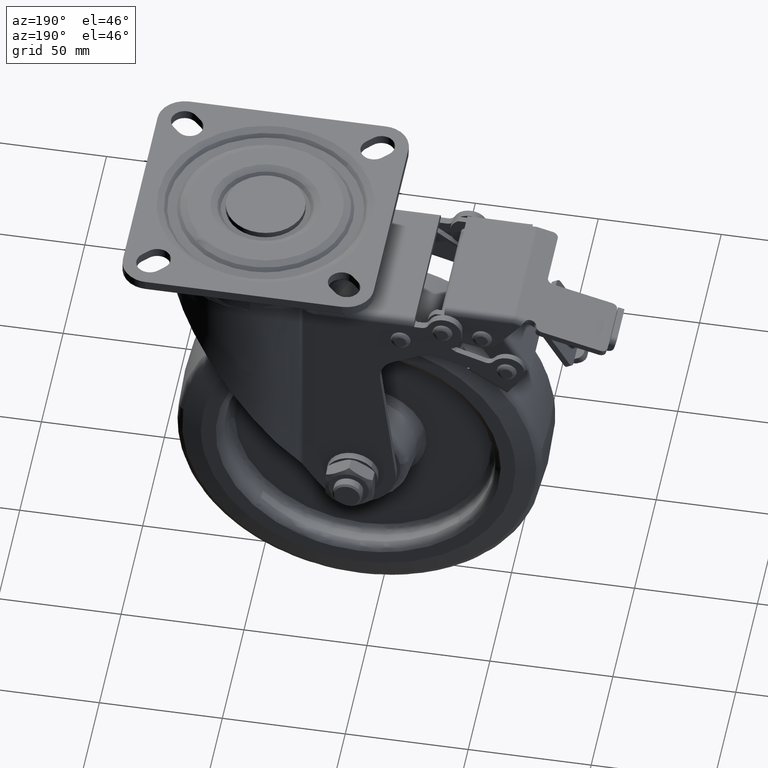
[diagram: clean part render]
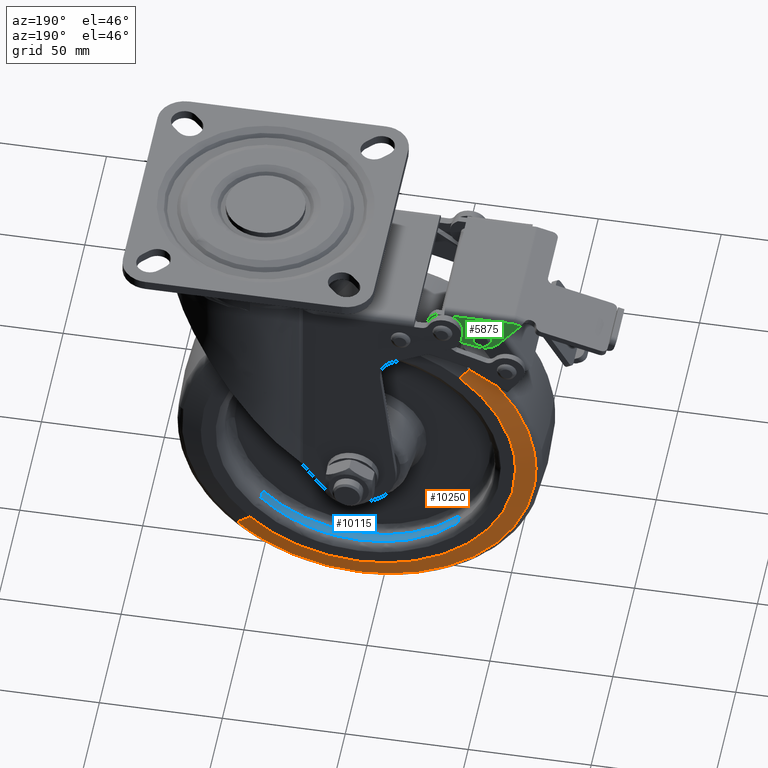
[diagram: same view with three faces highlighted in distinct colors, each labeled with its STEP entity id]
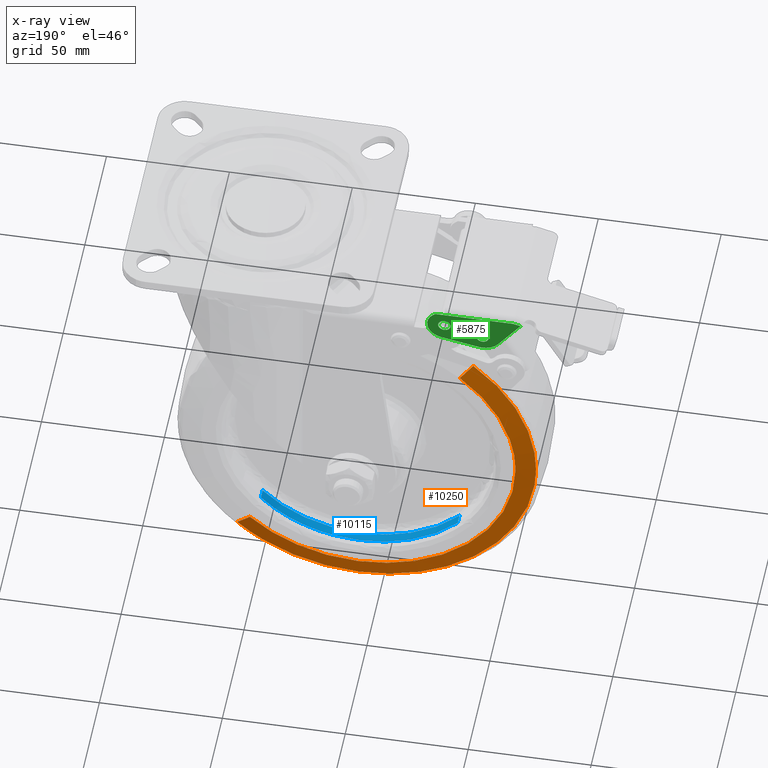
[diagram: x-ray of the same camera — body ghosted, the three highlighted faces saturated]
A machine part, auxiliary view with three faces highlighted in distinct colors.
The next image is the same camera in x-ray (body ghosted, the three faces saturated) — at least one of them is partly hidden behind the body in this view.
Their STEP definitions:

[orange] entity #10250 — the highlighted face is a freeform B-spline surface patch.
#10116=CARTESIAN_POINT('',(-82.198577956156896,19.046081945176685,-66.284878032454273));
#10117=CARTESIAN_POINT('',(-83.592784017773084,19.046081945176685,-67.463963633453233));
#10118=CARTESIAN_POINT('',(-84.917273404180804,19.046081945176692,-68.720857130144083));
#10119=CARTESIAN_POINT('',(-131.196423274036700,19.046081945176692,-112.638130534324890));
#10120=CARTESIAN_POINT('',(-87.279149869855900,19.046081945176692,-158.917280404180790));
#10121=CARTESIAN_POINT('',(-43.361876465675110,19.046081945176692,-205.196430274036800));
#10122=CARTESIAN_POINT('',(2.917273404180797,19.046081945176692,-161.279156869855910));
#10123=CARTESIAN_POINT('',(-87.615293971609645,17.109488199042428,-59.879899211239497));
#10124=CARTESIAN_POINT('',(-89.192807775323985,17.109488199042435,-61.214008897422119));
#10125=CARTESIAN_POINT('',(-90.691438678928876,17.109488199042431,-62.636156523527092));
#10126=CARTESIAN_POINT('',(-143.055289155401820,17.109488199042424,-112.327595202455970));
#10127=CARTESIAN_POINT('',(-93.363850476472919,17.109488199042431,-164.691445678928890));
#10128=CARTESIAN_POINT('',(-43.672411797544036,17.109488199042424,-217.055296155401810));
#10129=CARTESIAN_POINT('',(8.691438678928876,17.109488199042431,-167.363857476472900));
#10137=(BOUNDED_SURFACE()B_SPLINE_SURFACE(2,1,((#10116,#10123),(#10117,#10124),(#10118,#10125),(#10119,#10126),(#10120,#10127),(#10121,#10128),(#10122,#10129)),.UNSPECIFIED.,.F.,.F.,.U.)B_SPLINE_SURFACE_WITH_KNOTS((3,2,2,3),(2,2),(0.0,4.784247784252538,124.390442390565790,243.996636996879090),(0.0,8.609004671263591),.UNSPECIFIED.)GEOMETRIC_REPRESENTATION_ITEM()RATIONAL_B_SPLINE_SURFACE(((0.977505800795127,0.977505800795127),(0.988284271247462,0.988284271247462),(1.0,1.0),(0.707106781186548,0.707106781186548),(1.0,1.0),(0.707106781186548,0.707106781186548),(1.0,1.0)))REPRESENTATION_ITEM('')SURFACE());
#10138=CARTESIAN_POINT('',(-82.327469653636314,19.000000175792039,-66.132470450032088));
#10139=VERTEX_POINT('',#10138);
#10140=CARTESIAN_POINT('',(-104.999969348127190,18.999999999998000,-115.000010253305010));
#10141=VERTEX_POINT('',#10140);
#10142=CARTESIAN_POINT('',(-82.327469653636314,19.000000175792039,-66.132470450032088));
#10143=CARTESIAN_POINT('',(-84.759982406257379,19.000000168392461,-68.189417707699974));
#10144=CARTESIAN_POINT('',(-88.488169639989025,19.000000155211460,-71.853500605451487));
#10145=CARTESIAN_POINT('',(-94.173825462451688,19.000000129500769,-79.000600631631059));
#10146=CARTESIAN_POINT('',(-98.383963395646660,19.000000103818071,-86.139898805526215));
#10147=CARTESIAN_POINT('',(-101.338177494695300,19.000000077729510,-93.392071720516341));
#10148=CARTESIAN_POINT('',(-103.151297490172990,19.000000056285302,-99.353167055846868));
#10149=CARTESIAN_POINT('',(-104.588269822607400,19.000000031251790,-106.312038385925010));
#10150=CARTESIAN_POINT('',(-105.000144060942400,19.000000011457679,-111.814396779991600));
#10151=CARTESIAN_POINT('',(-104.999969348127190,18.999999999998000,-115.000010253305010));
#10152=B_SPLINE_CURVE_WITH_KNOTS('',3,(#10142,#10143,#10144,#10145,#10146,#10147,#10148,#10149,#10150,#10151),.UNSPECIFIED.,.F.,.U.,(4,1,1,1,1,1,1,4),(0.000000017159280,9.556830139315309,15.638458223512981,27.367306808380832,34.317690900685108,39.096122076201738,46.046556414029240,55.603386536167747),.UNSPECIFIED.);
#10153=EDGE_CURVE('',#10139,#10141,#10152,.T.);
#10154=ORIENTED_EDGE('',*,*,#10153,.T.);
#10155=CARTESIAN_POINT('',(-41.0,18.999999999998000,-178.999976348127290));
#10156=VERTEX_POINT('',#10155);
#10157=CARTESIAN_POINT('',(-104.999969348127190,18.999999999998000,-115.000010253305010));
#10158=CARTESIAN_POINT('',(-105.000110441006400,18.999999999998010,-118.141590493614500));
#10159=CARTESIAN_POINT('',(-104.536469112791590,18.999999999998021,-124.424738445196890));
#10160=CARTESIAN_POINT('',(-102.638430923255800,18.999999999998028,-132.877052367751990));
#10161=CARTESIAN_POINT('',(-99.718430787490135,18.999999999998039,-140.882660383225100));
#10162=CARTESIAN_POINT('',(-96.113799818570271,18.999999999997890,-147.882626594517490));
#10163=CARTESIAN_POINT('',(-90.898106976493409,18.999999999998089,-155.435299580755500));
#10164=CARTESIAN_POINT('',(-84.907094038593911,18.999999999997971,-161.884612748954200));
#10165=CARTESIAN_POINT('',(-77.944319833054706,18.999999999998021,-167.456853788159800));
#10166=CARTESIAN_POINT('',(-70.463722965234965,18.999999999997971,-172.066551788801090));
#10167=CARTESIAN_POINT('',(-62.265267325652573,18.999999999998181,-175.610712343342610));
#10168=CARTESIAN_POINT('',(-52.126271245155692,18.999999999997470,-178.316324792821800));
#10169=CARTESIAN_POINT('',(-45.188825503376023,18.999999999999069,-179.000495865768410));
#10170=CARTESIAN_POINT('',(-41.0,18.999999999998000,-178.999976348127290));
#10171=B_SPLINE_CURVE_WITH_KNOTS('',3,(#10157,#10158,#10159,#10160,#10161,#10162,#10163,#10164,#10165,#10166,#10167,#10168,#10169,#10170),.UNSPECIFIED.,.F.,.U.,(4,1,1,1,1,1,1,1,1,1,1,4),(0.000000067882596,9.424739411712196,18.849558350017819,25.918168783862029,34.950287899685208,42.411596893676013,53.407070292949207,61.261088148643559,69.115091210688760,79.718012854144291,87.964699705041667,100.531072637231900),.UNSPECIFIED.);
#10172=EDGE_CURVE('',#10141,#10156,#10171,.T.);
#10173=ORIENTED_EDGE('',*,*,#10172,.T.);
#10174=CARTESIAN_POINT('',(3.054670655155538,19.000000178022109,-161.423943362201300));
#10175=VERTEX_POINT('',#10174);
#10176=CARTESIAN_POINT('',(-41.0,18.999999999998000,-178.999976348127290));
#10177=CARTESIAN_POINT('',(-37.836598053718717,19.000000012781250,-179.000085594740400));
#10178=CARTESIAN_POINT('',(-30.877068747085929,19.000000040904592,-178.483169462371310));
#10179=CARTESIAN_POINT('',(-21.863139920849122,19.000000077329631,-176.303578986840900));
#10180=CARTESIAN_POINT('',(-13.859927769925440,19.000000109670541,-173.110226437794810));
#10181=CARTESIAN_POINT('',(-5.705260322982841,19.000000142623620,-168.736741156896810));
#10182=CARTESIAN_POINT('',(-0.157412426154965,19.000000165041889,-164.473063911551290));
#10183=CARTESIAN_POINT('',(3.054670655155538,19.000000178022109,-161.423943362201300));
#10184=B_SPLINE_CURVE_WITH_KNOTS('',3,(#10176,#10177,#10178,#10179,#10180,#10181,#10182,#10183),.UNSPECIFIED.,.F.,.U.,(4,1,1,1,1,4),(0.000000020681568,9.490233998483042,20.878540999175261,27.711473157215298,35.303680382963627,48.590013729713448),.UNSPECIFIED.);
#10185=EDGE_CURVE('',#10156,#10175,#10184,.T.);
#10186=ORIENTED_EDGE('',*,*,#10185,.T.);
#10187=CARTESIAN_POINT('',(8.550605374850802,17.156722194424979,-167.215450139657290));
#10188=VERTEX_POINT('',#10187);
#10189=CARTESIAN_POINT('',(3.054670655155538,19.000000178022109,-161.423943362201300));
#10190=CARTESIAN_POINT('',(8.550605374850802,17.156722194424979,-167.215450139657290));
#10191=QUASI_UNIFORM_CURVE('',1,(#10189,#10190),.UNSPECIFIED.,.F.,.U.);
#10192=EDGE_CURVE('',#10175,#10188,#10191,.T.);
#10193=ORIENTED_EDGE('',*,*,#10192,.T.);
#10194=CARTESIAN_POINT('',(-41.0,17.156722194355549,-186.984137163031590));
#10195=VERTEX_POINT('',#10194);
#10196=CARTESIAN_POINT('',(-41.0,17.156722194355549,-186.984137163031590));
#10197=CARTESIAN_POINT('',(-37.584268056939173,17.156722194400579,-186.984296960509910));
#10198=CARTESIAN_POINT('',(-30.610507773121569,17.156722194478000,-186.486880931567810));
#10199=CARTESIAN_POINT('',(-21.550679666120470,17.156722194538560,-184.494323539607900));
#10200=CARTESIAN_POINT('',(-13.754577274830661,17.156722194560381,-181.753076595628390));
#10201=CARTESIAN_POINT('',(-6.649946868043044,17.156722194556419,-178.443513961923090));
#10202=CARTESIAN_POINT('',(1.002706993300582,17.156722194517979,-173.734557380599110));
#10203=CARTESIAN_POINT('',(6.073019338924867,17.156722194461860,-169.566790954041490));
#10204=CARTESIAN_POINT('',(8.550605374850802,17.156722194424979,-167.215450139657290));
#10205=B_SPLINE_CURVE_WITH_KNOTS('',3,(#10196,#10197,#10198,#10199,#10200,#10201,#10202,#10203,#10204),.UNSPECIFIED.,.F.,.U.,(4,1,1,1,1,1,4),(0.000000017160566,10.247194028847121,20.921390000168280,27.752817529719181,35.011260846933091,44.404549879933093,54.651743614947847),.UNSPECIFIED.);
#10206=EDGE_CURVE('',#10195,#10188,#10205,.T.);
#10207=ORIENTED_EDGE('',*,*,#10206,.F.);
#10208=CARTESIAN_POINT('',(-112.416513802532610,17.156722192850580,-124.022010799569200));
#10209=VERTEX_POINT('',#10208);
#10210=CARTESIAN_POINT('',(-112.416513802532610,17.156722192850580,-124.022010799569200));
#10211=CARTESIAN_POINT('',(-111.823002213773410,17.156722192963070,-128.725580415928500));
#10212=CARTESIAN_POINT('',(-110.337529987395400,17.156722193118281,-135.227488840894610));
#10213=CARTESIAN_POINT('',(-106.681712994380400,17.156722193348891,-144.859435591913410));
#10214=CARTESIAN_POINT('',(-102.866419441990200,17.156722193524320,-152.215394038813910));
#10215=CARTESIAN_POINT('',(-97.961905533892320,17.156722193691682,-159.215265555678000));
#10216=CARTESIAN_POINT('',(-92.996753940533239,17.156722193829282,-164.959893038330590));
#10217=CARTESIAN_POINT('',(-87.273998087038862,17.156722193957911,-170.360465285060710));
#10218=CARTESIAN_POINT('',(-79.533319792459821,17.156722194095568,-176.098689793398790));
#10219=CARTESIAN_POINT('',(-70.798063257745525,17.156722194207720,-180.802224148289610));
#10220=CARTESIAN_POINT('',(-60.854145714140863,17.156722194294549,-184.431965680055100));
#10221=CARTESIAN_POINT('',(-51.158817497615637,17.156722194344340,-186.515476636821010));
#10222=CARTESIAN_POINT('',(-44.250817730768837,17.156722194355570,-186.984256171469210));
#10223=CARTESIAN_POINT('',(-41.0,17.156722194355549,-186.984137163031590));
#10224=B_SPLINE_CURVE_WITH_KNOTS('',3,(#10210,#10211,#10212,#10213,#10214,#10215,#10216,#10217,#10218,#10219,#10220,#10221,#10222,#10223),.UNSPECIFIED.,.F.,.U.,(4,1,1,1,1,1,1,1,1,1,1,4),(0.000000063224888,14.222402259705730,19.911367382167001,30.882954921920462,39.010054741607313,45.511736651747249,53.638735158212747,62.578570482356419,74.362863844952386,83.302681565804704,94.274295070805678,104.026752792859000),.UNSPECIFIED.);
#10225=EDGE_CURVE('',#10209,#10195,#10224,.T.);
#10226=ORIENTED_EDGE('',*,*,#10225,.F.);
#10227=CARTESIAN_POINT('',(-87.483178942313359,17.156722194469769,-60.036118212233838));
#10228=VERTEX_POINT('',#10227);
#10229=CARTESIAN_POINT('',(-87.483178942313359,17.156722194469769,-60.036118212233838));
#10230=CARTESIAN_POINT('',(-91.042226768114489,17.156722194426209,-63.045147497982988));
#10231=CARTESIAN_POINT('',(-95.743532281226535,17.156722194342588,-67.878659169600510));
#10232=CARTESIAN_POINT('',(-101.088426943409500,17.156722194191790,-75.181354596964894));
#10233=CARTESIAN_POINT('',(-105.026459582794100,17.156722194044590,-81.742547190047318));
#10234=CARTESIAN_POINT('',(-108.870364812794190,17.156722193836849,-90.257768571202689));
#10235=CARTESIAN_POINT('',(-111.259266076761090,17.156722193612399,-98.617905598931344));
#10236=CARTESIAN_POINT('',(-112.581984368706800,17.156722193389090,-106.529136832003200));
#10237=CARTESIAN_POINT('',(-113.180038598298590,17.156722193157108,-114.347569553427800));
#10238=CARTESIAN_POINT('',(-112.860653589585200,17.156722192964320,-120.507957380815400));
#10239=CARTESIAN_POINT('',(-112.416513802532610,17.156722192850580,-124.022010799569200));
#10240=B_SPLINE_CURVE_WITH_KNOTS('',3,(#10229,#10230,#10231,#10232,#10233,#10234,#10235,#10236,#10237,#10238,#10239),.UNSPECIFIED.,.F.,.U.,(4,1,1,1,1,1,1,1,4),(0.000000034196972,13.981584184338960,20.133504383036161,27.124322596103809,36.911374106980659,48.096669801055683,53.130059669587880,60.959765224135467,71.585766693182620),.UNSPECIFIED.);
#10241=EDGE_CURVE('',#10228,#10209,#10240,.T.);
#10242=ORIENTED_EDGE('',*,*,#10241,.F.);
#10243=CARTESIAN_POINT('',(-82.327469653636314,19.000000175792039,-66.132470450032088));
#10244=CARTESIAN_POINT('',(-87.483178942313359,17.156722194469769,-60.036118212233838));
#10245=QUASI_UNIFORM_CURVE('',1,(#10243,#10244),.UNSPECIFIED.,.F.,.U.);
#10246=EDGE_CURVE('',#10139,#10228,#10245,.T.);
#10247=ORIENTED_EDGE('',*,*,#10246,.F.);
#10248=EDGE_LOOP('',(#10154,#10173,#10186,#10193,#10207,#10226,#10242,#10247));
#10249=FACE_OUTER_BOUND('',#10248,.T.);
#10250=ADVANCED_FACE('',(#10249),#10137,.T.);

[blue] entity #10115 — the highlighted face is a freeform B-spline surface patch.
#9884=CARTESIAN_POINT('',(-0.920758063941225,11.999999249066660,-152.665013515733110));
#9885=VERTEX_POINT('',#9884);
#9937=CARTESIAN_POINT('',(-80.895579474130386,11.999999250032729,-152.859498391506610));
#9938=VERTEX_POINT('',#9937);
#9951=CARTESIAN_POINT('',(-80.895579991931811,15.999999624999001,-152.859498689250190));
#9952=VERTEX_POINT('',#9951);
#9953=CARTESIAN_POINT('',(-80.895579991931811,15.999999624999001,-152.859498689250190));
#9954=CARTESIAN_POINT('',(-80.895579474130386,11.999999250032729,-152.859498391506610));
#9955=QUASI_UNIFORM_CURVE('',1,(#9953,#9954),.UNSPECIFIED.,.F.,.U.);
#9956=EDGE_CURVE('',#9952,#9938,#9955,.T.);
#10008=CARTESIAN_POINT('',(-0.920758004310724,15.999999624660539,-152.665013452291190));
#10009=VERTEX_POINT('',#10008);
#10025=CARTESIAN_POINT('',(-0.920758004310724,15.999999624660539,-152.665013452291190));
#10026=CARTESIAN_POINT('',(-0.920758063941225,11.999999249066660,-152.665013515733110));
#10027=QUASI_UNIFORM_CURVE('',1,(#10025,#10026),.UNSPECIFIED.,.F.,.U.);
#10028=EDGE_CURVE('',#10009,#9885,#10027,.T.);
#10033=CARTESIAN_POINT('',(-80.895579525060171,16.099999634447020,-152.859498337837810));
#10034=CARTESIAN_POINT('',(-43.036088187222418,16.099999634447027,-192.755077862897930));
#10035=CARTESIAN_POINT('',(-3.140508662162247,16.099999634447020,-154.895586525060200));
#10036=CARTESIAN_POINT('',(-1.998714316455273,16.099999634447023,-153.812064148508820));
#10037=CARTESIAN_POINT('',(-0.920758013492301,16.099999634447027,-152.665013462061980));
#10038=CARTESIAN_POINT('',(-80.895579525060171,11.897499237393850,-152.859498337837810));
#10039=CARTESIAN_POINT('',(-43.036088187222418,11.897499237393847,-192.755077862897930));
#10040=CARTESIAN_POINT('',(-3.140508662162247,11.897499237393850,-154.895586525060200));
#10041=CARTESIAN_POINT('',(-1.998714316455273,11.897499237393845,-153.812064148508820));
#10042=CARTESIAN_POINT('',(-0.920758013492301,11.897499237393843,-152.665013462061980));
#10050=(BOUNDED_SURFACE()B_SPLINE_SURFACE(2,1,((#10033,#10038),(#10034,#10039),(#10035,#10040),(#10036,#10041),(#10037,#10042)),.UNSPECIFIED.,.F.,.F.,.U.)B_SPLINE_SURFACE_WITH_KNOTS((3,2,3),(2,2),(0.0,91.126958869266971,94.772037224037661),(0.0,4.202500397053178),.UNSPECIFIED.)GEOMETRIC_REPRESENTATION_ITEM()RATIONAL_B_SPLINE_SURFACE(((1.0,1.0),(0.707106781186548,0.707106781186548),(1.0,1.0),(0.988284271247462,0.988284271247462),(0.977505800795127,0.977505800795127)))REPRESENTATION_ITEM('')SURFACE());
#10051=CARTESIAN_POINT('',(-41.0,11.999999249999000,-169.999991999999910));
#10052=VERTEX_POINT('',#10051);
#10053=CARTESIAN_POINT('',(-41.0,11.999999249999000,-169.999991999999910));
#10054=CARTESIAN_POINT('',(-37.725696754896880,11.999999249999080,-170.000359742841910));
#10055=CARTESIAN_POINT('',(-32.580561673972959,11.999999249974170,-169.539040242688490));
#10056=CARTESIAN_POINT('',(-25.169426501067029,11.999999249881050,-167.806740721462890));
#10057=CARTESIAN_POINT('',(-18.447784177935588,11.999999249750079,-165.371325187202810));
#10058=CARTESIAN_POINT('',(-11.829024802889370,11.999999249559520,-161.831271712097300));
#10059=CARTESIAN_POINT('',(-5.857854468960040,11.999999249326580,-157.493139558825500));
#10060=CARTESIAN_POINT('',(-2.522333166940917,11.999999249158170,-154.369357849858200));
#10061=CARTESIAN_POINT('',(-0.920758063941225,11.999999249066660,-152.665013515733110));
#10062=B_SPLINE_CURVE_WITH_KNOTS('',3,(#10053,#10054,#10055,#10056,#10057,#10058,#10059,#10060,#10061),.UNSPECIFIED.,.F.,.U.,(4,1,1,1,1,1,4),(0.000000025434886,9.822825629895824,15.435876108676460,22.802967603438741,31.222560294339779,37.888055936032821,44.904359787489639),.UNSPECIFIED.);
#10063=EDGE_CURVE('',#10052,#9885,#10062,.T.);
#10064=ORIENTED_EDGE('',*,*,#10063,.T.);
#10065=ORIENTED_EDGE('',*,*,#10028,.F.);
#10066=CARTESIAN_POINT('',(-19.474454194543849,15.999999623986421,-165.612744801638710));
#10067=VERTEX_POINT('',#10066);
#10068=CARTESIAN_POINT('',(-19.474454194543849,15.999999623986421,-165.612744801638710));
#10069=CARTESIAN_POINT('',(-17.180842590088929,15.999999624080880,-164.637383215493290));
#10070=CARTESIAN_POINT('',(-12.832656720324090,15.999999624253560,-162.427959465425000));
#10071=CARTESIAN_POINT('',(-6.562496555930705,15.999999624482330,-158.112412013402690));
#10072=CARTESIAN_POINT('',(-2.790035161720931,15.999999624604850,-154.654336818332690));
#10073=CARTESIAN_POINT('',(-0.920758004310724,15.999999624660539,-152.665013452291190));
#10074=B_SPLINE_CURVE_WITH_KNOTS('',3,(#10068,#10069,#10070,#10071,#10072,#10073),.UNSPECIFIED.,.F.,.U.,(4,1,1,4),(6.634718E-009,7.477155815150676,14.598244878061269,22.787517295901370),.UNSPECIFIED.);
#10075=EDGE_CURVE('',#10067,#10009,#10074,.T.);
#10076=ORIENTED_EDGE('',*,*,#10075,.F.);
#10077=CARTESIAN_POINT('',(-41.0,15.999999624999001,-169.999991999999910));
#10078=VERTEX_POINT('',#10077);
#10079=CARTESIAN_POINT('',(-41.0,15.999999624999001,-169.999991999999910));
#10080=CARTESIAN_POINT('',(-37.889801264202163,15.999999624999070,-170.000236622256610));
#10081=CARTESIAN_POINT('',(-33.167044227680670,15.999999624906330,-169.598267928552590));
#10082=CARTESIAN_POINT('',(-25.955379429536080,15.999999624545159,-168.033722988386590));
#10083=CARTESIAN_POINT('',(-21.912480705536058,15.999999624225790,-166.649780286667100));
#10084=CARTESIAN_POINT('',(-19.474454194543849,15.999999623986421,-165.612744801638710));
#10085=B_SPLINE_CURVE_WITH_KNOTS('',3,(#10079,#10080,#10081,#10082,#10083,#10084),.UNSPECIFIED.,.F.,.U.,(4,1,1,4),(6.786319E-009,9.330548186454625,14.168601056638099,22.116842629575810),.UNSPECIFIED.);
#10086=EDGE_CURVE('',#10078,#10067,#10085,.T.);
#10087=ORIENTED_EDGE('',*,*,#10086,.F.);
#10088=CARTESIAN_POINT('',(-80.895579991931811,15.999999624999001,-152.859498689250190));
#10089=CARTESIAN_POINT('',(-79.295328930757947,15.999999624999051,-154.545924805801890));
#10090=CARTESIAN_POINT('',(-75.965869325510454,15.999999624998949,-157.636138561489300));
#10091=CARTESIAN_POINT('',(-71.147880050125266,15.999999624999020,-161.108844734200200));
#10092=CARTESIAN_POINT('',(-66.219138849897888,15.999999624998971,-163.971911904089100));
#10093=CARTESIAN_POINT('',(-60.295756122855657,15.999999624998971,-166.696959518197590));
#10094=CARTESIAN_POINT('',(-51.694058404986713,15.999999624999090,-169.279539524546210));
#10095=CARTESIAN_POINT('',(-44.836006903909478,15.999999624998910,-170.000577687207510));
#10096=CARTESIAN_POINT('',(-41.0,15.999999624999001,-169.999991999999910));
#10097=B_SPLINE_CURVE_WITH_KNOTS('',3,(#10088,#10089,#10090,#10091,#10092,#10093,#10094,#10095,#10096),.UNSPECIFIED.,.F.,.U.,(4,1,1,1,1,1,4),(0.000000027104250,6.974493237252119,13.600302964266870,17.785014935187210,24.062045952626381,33.128917671370793,44.636858516154959),.UNSPECIFIED.);
#10098=EDGE_CURVE('',#9952,#10078,#10097,.T.);
#10099=ORIENTED_EDGE('',*,*,#10098,.F.);
#10100=ORIENTED_EDGE('',*,*,#9956,.T.);
#10101=CARTESIAN_POINT('',(-80.895579474130386,11.999999250032729,-152.859498391506610));
#10102=CARTESIAN_POINT('',(-78.575404795024738,11.999999250151999,-155.305049489071510));
#10103=CARTESIAN_POINT('',(-74.887894708547122,11.999999250286630,-158.536050455160590));
#10104=CARTESIAN_POINT('',(-69.170808786563725,11.999999250394181,-162.334809295046910));
#10105=CARTESIAN_POINT('',(-63.012778310102192,11.999999250443370,-165.630959795786400));
#10106=CARTESIAN_POINT('',(-55.973416566420241,11.999999250394289,-168.139851421623290));
#10107=CARTESIAN_POINT('',(-48.090694714537442,11.999999250233399,-169.683166272158300));
#10108=CARTESIAN_POINT('',(-43.557319459846248,11.999999250093101,-170.000113696523700));
#10109=CARTESIAN_POINT('',(-41.0,11.999999249999000,-169.999991999999910));
#10110=B_SPLINE_CURVE_WITH_KNOTS('',3,(#10101,#10102,#10103,#10104,#10105,#10106,#10107,#10108,#10109),.UNSPECIFIED.,.F.,.U.,(4,1,1,1,1,1,4),(0.000000027097521,10.113034124497180,14.646478550360570,20.574812417287131,31.036555317531370,36.964907606869637,44.636858140116530),.UNSPECIFIED.);
#10111=EDGE_CURVE('',#9938,#10052,#10110,.T.);
#10112=ORIENTED_EDGE('',*,*,#10111,.T.);
#10113=EDGE_LOOP('',(#10064,#10065,#10076,#10087,#10099,#10100,#10112));
#10114=FACE_OUTER_BOUND('',#10113,.T.);
#10115=ADVANCED_FACE('',(#10114),#10050,.F.);

[green] entity #5875 — the highlighted face is a freeform B-spline surface patch.
#1226=CARTESIAN_POINT('',(-70.983119501999937,27.500000000000000,-30.752266153460010));
#1227=VERTEX_POINT('',#1226);
#1233=CARTESIAN_POINT('',(-71.699988999994119,27.500000000000000,-29.000005465540411));
#1234=VERTEX_POINT('',#1233);
#1235=CARTESIAN_POINT('',(-71.699988999994119,27.500000000000000,-29.000005465540411));
#1236=CARTESIAN_POINT('',(-71.700256944211546,27.499999999999989,-29.303437620913400));
#1237=CARTESIAN_POINT('',(-71.580613037503568,27.500000000000060,-29.950438491463348));
#1238=CARTESIAN_POINT('',(-71.224480409734355,27.499999999999961,-30.507286102849982));
#1239=CARTESIAN_POINT('',(-70.983119501999937,27.500000000000000,-30.752266153460010));
#1240=B_SPLINE_CURVE_WITH_KNOTS('',3,(#1235,#1236,#1237,#1238,#1239),.UNSPECIFIED.,.F.,.U.,(4,1,4),(0.000000103844917,0.910206696291959,1.941712604031539),.UNSPECIFIED.);
#1241=EDGE_CURVE('',#1234,#1227,#1240,.T.);
#1243=CARTESIAN_POINT('',(-69.200000000000003,27.500000000000000,-26.500010999999908));
#1244=VERTEX_POINT('',#1243);
#1245=CARTESIAN_POINT('',(-69.200000000000003,27.500000000000000,-26.500010999999908));
#1246=CARTESIAN_POINT('',(-69.568264584560779,27.500000000000071,-26.499439295175879));
#1247=CARTESIAN_POINT('',(-70.160881947207102,27.499999999999940,-26.633509289518919));
#1248=CARTESIAN_POINT('',(-70.818251222437866,27.500000000000060,-27.061377754304761));
#1249=CARTESIAN_POINT('',(-71.294564797813294,27.499999999999918,-27.573922006638160));
#1250=CARTESIAN_POINT('',(-71.621188771253614,27.500000000000121,-28.222772466069191));
#1251=CARTESIAN_POINT('',(-71.700050196439122,27.499999999999961,-28.754577963039850));
#1252=CARTESIAN_POINT('',(-71.699988999994119,27.500000000000000,-29.000005465540411));
#1253=B_SPLINE_CURVE_WITH_KNOTS('',3,(#1245,#1246,#1247,#1248,#1249,#1250,#1251,#1252),.UNSPECIFIED.,.F.,.U.,(4,1,1,1,1,4),(0.000000472831645,1.104496470650256,1.779458301729828,2.331698124756349,3.190757194459266,3.927075162280116),.UNSPECIFIED.);
#1254=EDGE_CURVE('',#1244,#1234,#1253,.T.);
#1256=CARTESIAN_POINT('',(-66.700011000005887,27.500000000000000,-28.999994534459582));
#1257=VERTEX_POINT('',#1256);
#1258=CARTESIAN_POINT('',(-66.700011000005887,27.500000000000000,-28.999994534459582));
#1259=CARTESIAN_POINT('',(-66.699461582495445,27.500000000000050,-28.631713843195332));
#1260=CARTESIAN_POINT('',(-66.833546130414945,27.499999999999972,-28.039185149391169));
#1261=CARTESIAN_POINT('',(-67.328771390683144,27.500000000000021,-27.277788963044550));
#1262=CARTESIAN_POINT('',(-68.075733919570425,27.500000000000110,-26.679775382419770));
#1263=CARTESIAN_POINT('',(-68.790788983315821,27.500000000000039,-26.499148431198311));
#1264=CARTESIAN_POINT('',(-69.200000000000003,27.500000000000000,-26.500010999999908));
#1265=B_SPLINE_CURVE_WITH_KNOTS('',3,(#1258,#1259,#1260,#1261,#1262,#1263,#1264),.UNSPECIFIED.,.F.,.U.,(4,1,1,1,4),(0.000000480294153,1.104494743665021,1.779455501584925,2.699851552214670,3.927069001188498),.UNSPECIFIED.);
#1266=EDGE_CURVE('',#1257,#1244,#1265,.T.);
#1268=CARTESIAN_POINT('',(-67.447735778700576,27.500000000000000,-30.783117569881110));
#1269=VERTEX_POINT('',#1268);
#1270=CARTESIAN_POINT('',(-67.447735778700576,27.500000000000000,-30.783117569881110));
#1271=CARTESIAN_POINT('',(-67.255912744835015,27.500000000000011,-30.594760994360289));
#1272=CARTESIAN_POINT('',(-66.859442294646215,27.499999999999979,-30.054045149913549));
#1273=CARTESIAN_POINT('',(-66.699278436296154,27.500000000000028,-29.393080230930931));
#1274=CARTESIAN_POINT('',(-66.700011000005887,27.500000000000000,-28.999994534459582));
#1275=B_SPLINE_CURVE_WITH_KNOTS('',3,(#1270,#1271,#1272,#1273,#1274),.UNSPECIFIED.,.F.,.U.,(4,1,4),(0.000000115994882,0.806558424420563,1.985359525150594),.UNSPECIFIED.);
#1276=EDGE_CURVE('',#1269,#1257,#1275,.T.);
#1355=CARTESIAN_POINT('',(-69.200000000000003,27.500000000000000,-31.499989000000092));
#1356=VERTEX_POINT('',#1355);
#1357=CARTESIAN_POINT('',(-69.200000000000003,27.500000000000000,-31.499989000000092));
#1358=CARTESIAN_POINT('',(-68.937067835386074,27.499999999999989,-31.500099410018510));
#1359=CARTESIAN_POINT('',(-68.289846654252585,27.499999999999989,-31.397015082422829));
#1360=CARTESIAN_POINT('',(-67.721459363157194,27.500000000000000,-31.053054801033749));
#1361=CARTESIAN_POINT('',(-67.447735778700576,27.500000000000000,-30.783117569881110));
#1362=B_SPLINE_CURVE_WITH_KNOTS('',3,(#1357,#1358,#1359,#1360,#1361),.UNSPECIFIED.,.F.,.U.,(4,1,4),(0.000000103717098,0.788828219740828,1.941716985002641),.UNSPECIFIED.);
#1363=EDGE_CURVE('',#1356,#1269,#1362,.T.);
#1365=CARTESIAN_POINT('',(-70.983119501999937,27.500000000000000,-30.752266153460010));
#1366=CARTESIAN_POINT('',(-70.794762919465086,27.500000000000011,-30.944088592681670));
#1367=CARTESIAN_POINT('',(-70.254049075795976,27.500000000000000,-31.340557371259649));
#1368=CARTESIAN_POINT('',(-69.593084531922813,27.500000000000028,-31.500721434246380));
#1369=CARTESIAN_POINT('',(-69.200000000000003,27.500000000000000,-31.499989000000092));
#1370=B_SPLINE_CURVE_WITH_KNOTS('',3,(#1365,#1366,#1367,#1368,#1369),.UNSPECIFIED.,.F.,.U.,(4,1,4),(0.000000115858064,0.806556635056896,1.985355120257472),.UNSPECIFIED.);
#1371=EDGE_CURVE('',#1227,#1356,#1370,.T.);
#1605=CARTESIAN_POINT('',(-82.791110262932392,27.500000000000000,-34.614370862877813));
#1606=VERTEX_POINT('',#1605);
#1612=CARTESIAN_POINT('',(-84.699991999999597,27.500000000000000,-35.500010999999773));
#1613=VERTEX_POINT('',#1612);
#1614=CARTESIAN_POINT('',(-82.791110262932392,27.500000000000000,-34.614370862877813));
#1615=CARTESIAN_POINT('',(-83.010022732853486,27.500000000000039,-34.873787442617790));
#1616=CARTESIAN_POINT('',(-83.591952498067499,27.499999999999961,-35.329353761004327));
#1617=CARTESIAN_POINT('',(-84.315260672821324,27.500000000000021,-35.500700110439958));
#1618=CARTESIAN_POINT('',(-84.699991999999597,27.500000000000000,-35.500010999999773));
#1619=B_SPLINE_CURVE_WITH_KNOTS('',3,(#1614,#1615,#1616,#1617,#1618),.UNSPECIFIED.,.F.,.U.,(4,1,4),(0.000000139087910,1.018183588383275,2.172061775804367),.UNSPECIFIED.);
#1620=EDGE_CURVE('',#1606,#1613,#1619,.T.);
#1622=CARTESIAN_POINT('',(-87.199980999993386,27.500000000000000,-33.000016534459569));
#1623=VERTEX_POINT('',#1622);
#1624=CARTESIAN_POINT('',(-84.699991999999597,27.500000000000000,-35.500010999999773));
#1625=CARTESIAN_POINT('',(-84.945434598683505,27.499999999999979,-35.500099139622492));
#1626=CARTESIAN_POINT('',(-85.415789461904410,27.500000000000039,-35.430175003844390));
#1627=CARTESIAN_POINT('',(-86.110172469473412,27.500000000000011,-35.112282777422912));
#1628=CARTESIAN_POINT('',(-86.694678986756088,27.499999999999979,-34.582638190682871));
#1629=CARTESIAN_POINT('',(-87.104028511118230,27.500000000000028,-33.838488757584038));
#1630=CARTESIAN_POINT('',(-87.200189544482143,27.500000000000028,-33.286381824119857));
#1631=CARTESIAN_POINT('',(-87.199980999993386,27.500000000000000,-33.000016534459569));
#1632=B_SPLINE_CURVE_WITH_KNOTS('',3,(#1624,#1625,#1626,#1627,#1628,#1629,#1630,#1631),.UNSPECIFIED.,.F.,.U.,(4,1,1,1,1,4),(0.000000472842102,0.736318439007952,1.411300544363621,2.270288815848466,3.068033818584659,3.927075162279610),.UNSPECIFIED.);
#1633=EDGE_CURVE('',#1613,#1623,#1632,.T.);
#1635=CARTESIAN_POINT('',(-84.699991999999597,27.500000000000000,-30.500033000000229));
#1636=VERTEX_POINT('',#1635);
#1637=CARTESIAN_POINT('',(-87.199980999993386,27.500000000000000,-33.000016534459569));
#1638=CARTESIAN_POINT('',(-87.200556969716146,27.500000000000021,-32.631752757183222));
#1639=CARTESIAN_POINT('',(-87.066485621603022,27.500000000000000,-32.039133506587113));
#1640=CARTESIAN_POINT('',(-86.649878755018563,27.500000000000060,-31.399084688491740));
#1641=CARTESIAN_POINT('',(-86.173630772850828,27.499999999999780,-30.945510432513512));
#1642=CARTESIAN_POINT('',(-85.538484265060660,27.500000000000611,-30.595924348530669));
#1643=CARTESIAN_POINT('',(-84.986352195296590,27.499999999999339,-30.499863332141281));
#1644=CARTESIAN_POINT('',(-84.699991999999597,27.500000000000000,-30.500033000000229));
#1645=B_SPLINE_CURVE_WITH_KNOTS('',3,(#1637,#1638,#1639,#1640,#1641,#1642,#1643,#1644),.UNSPECIFIED.,.F.,.U.,(4,1,1,1,1,4),(0.000000480298329,1.104494743667221,1.779455501586338,2.270285243988586,3.068029000902770,3.927069001188016),.UNSPECIFIED.);
#1646=EDGE_CURVE('',#1623,#1636,#1645,.T.);
#1648=CARTESIAN_POINT('',(-82.979113816619645,27.500000000000000,-31.186595283655290));
#1649=VERTEX_POINT('',#1648);
#1650=CARTESIAN_POINT('',(-84.699991999999597,27.500000000000000,-30.500033000000229));
#1651=CARTESIAN_POINT('',(-84.423182079858350,27.500000000000011,-30.499901974187718));
#1652=CARTESIAN_POINT('',(-83.790572428559855,27.499999999999989,-30.606140958877521));
#1653=CARTESIAN_POINT('',(-83.236989751121129,27.500000000000011,-30.941225883365611));
#1654=CARTESIAN_POINT('',(-82.979113816619645,27.500000000000000,-31.186595283655290));
#1655=B_SPLINE_CURVE_WITH_KNOTS('',3,(#1650,#1651,#1652,#1653,#1654),.UNSPECIFIED.,.F.,.U.,(4,1,4),(0.000000118065463,0.830434035439211,1.898081551386665),.UNSPECIFIED.);
#1656=EDGE_CURVE('',#1636,#1649,#1655,.T.);
#1735=CARTESIAN_POINT('',(-82.200003000005793,27.500000000000000,-33.000027465540413));
#1736=VERTEX_POINT('',#1735);
#1737=CARTESIAN_POINT('',(-82.979113816619645,27.500000000000000,-31.186595283655290));
#1738=CARTESIAN_POINT('',(-82.687144912868348,27.500000000000000,-31.462553494390342));
#1739=CARTESIAN_POINT('',(-82.312529023971123,27.500000000000071,-32.048967103359459));
#1740=CARTESIAN_POINT('',(-82.199870044371764,27.499999999999950,-32.725277772490259));
#1741=CARTESIAN_POINT('',(-82.200003000005793,27.500000000000000,-33.000027465540413));
#1742=B_SPLINE_CURVE_WITH_KNOTS('',3,(#1737,#1738,#1739,#1740,#1741),.UNSPECIFIED.,.F.,.U.,(4,1,4),(0.000000129248703,1.204709497201113,2.028995251906859),.UNSPECIFIED.);
#1743=EDGE_CURVE('',#1649,#1736,#1742,.T.);
#1745=CARTESIAN_POINT('',(-82.200003000005793,27.500000000000000,-33.000027465540413));
#1746=CARTESIAN_POINT('',(-82.199956048336574,27.500000000000050,-33.219402620964587));
#1747=CARTESIAN_POINT('',(-82.277430932606705,27.499999999999961,-33.804403985273623));
#1748=CARTESIAN_POINT('',(-82.554468484598431,27.500000000000039,-34.335500174364462));
#1749=CARTESIAN_POINT('',(-82.791110262932392,27.500000000000000,-34.614370862877813));
#1750=B_SPLINE_CURVE_WITH_KNOTS('',3,(#1745,#1746,#1747,#1748,#1749),.UNSPECIFIED.,.F.,.U.,(4,1,4),(0.000000079961021,0.658145495425279,1.755009229237641),.UNSPECIFIED.);
#1751=EDGE_CURVE('',#1736,#1606,#1750,.T.);
#4592=CARTESIAN_POINT('',(-97.199959883622995,27.500000000000000,-23.000022000000001));
#4593=VERTEX_POINT('',#4592);
#5369=CARTESIAN_POINT('',(-100.225681572973200,27.500000000000000,-23.810761350379050));
#5370=VERTEX_POINT('',#5369);
#5371=CARTESIAN_POINT('',(-100.225681572973200,27.500000000000000,-23.810761350379050));
#5372=CARTESIAN_POINT('',(-97.199959883622995,27.500000000000000,-23.000022000000001));
#5373=QUASI_UNIFORM_CURVE('',1,(#5371,#5372),.UNSPECIFIED.,.F.,.U.);
#5374=EDGE_CURVE('',#5370,#4593,#5373,.T.);
#5402=CARTESIAN_POINT('',(-69.199989000000002,27.500000000000000,-23.000022000000001));
#5403=VERTEX_POINT('',#5402);
#5404=CARTESIAN_POINT('',(-97.199959883622995,27.500000000000000,-23.000022000000001));
#5405=CARTESIAN_POINT('',(-69.199989000000002,27.500000000000000,-23.000022000000001));
#5406=QUASI_UNIFORM_CURVE('',1,(#5404,#5405),.UNSPECIFIED.,.F.,.U.);
#5407=EDGE_CURVE('',#4593,#5403,#5406,.T.);
#5799=CARTESIAN_POINT('',(-102.125035619225200,27.500000000000000,-39.798934541842847));
#5800=CARTESIAN_POINT('',(-60.301301327922552,27.500000000000000,-39.798934541842847));
#5801=CARTESIAN_POINT('',(-102.125035619225200,27.500000000000000,-22.200836474551391));
#5802=CARTESIAN_POINT('',(-60.301301327922552,27.500000000000000,-22.200836474551391));
#5803=B_SPLINE_SURFACE_WITH_KNOTS('',1,1,((#5799,#5801),(#5800,#5802)),.UNSPECIFIED.,.F.,.F.,.U.,(2,2),(2,2),(0.0,41.823734291302607),(0.0,17.598098067291460),.UNSPECIFIED.);
#5804=CARTESIAN_POINT('',(-91.065817059453494,27.500000000000000,-35.845225891823503));
#5805=VERTEX_POINT('',#5804);
#5806=CARTESIAN_POINT('',(-91.065817059453494,27.500000000000000,-35.845225891823503));
#5807=CARTESIAN_POINT('',(-100.225681572973200,27.500000000000000,-23.810761350379050));
#5808=QUASI_UNIFORM_CURVE('',1,(#5806,#5807),.UNSPECIFIED.,.F.,.U.);
#5809=EDGE_CURVE('',#5805,#5370,#5808,.T.);
#5810=ORIENTED_EDGE('',*,*,#5809,.T.);
#5811=ORIENTED_EDGE('',*,*,#5374,.T.);
#5812=ORIENTED_EDGE('',*,*,#5407,.T.);
#5813=CARTESIAN_POINT('',(-65.594396669644397,27.500000000000000,-23.000022000000001));
#5814=VERTEX_POINT('',#5813);
#5815=CARTESIAN_POINT('',(-69.199989000000002,27.500000000000000,-23.000022000000001));
#5816=CARTESIAN_POINT('',(-65.594396669644397,27.500000000000000,-23.000022000000001));
#5817=QUASI_UNIFORM_CURVE('',1,(#5815,#5816),.UNSPECIFIED.,.F.,.U.);
#5818=EDGE_CURVE('',#5403,#5814,#5817,.T.);
#5819=ORIENTED_EDGE('',*,*,#5818,.T.);
#5820=CARTESIAN_POINT('',(-67.861815566801312,27.500000000000000,-35.870906795655699));
#5821=VERTEX_POINT('',#5820);
#5822=CARTESIAN_POINT('',(-67.861815566801312,27.500000000000000,-35.870906795655699));
#5823=CARTESIAN_POINT('',(-67.387864665634083,27.500000000000028,-35.778633024420088));
#5824=CARTESIAN_POINT('',(-66.332400975350225,27.499999999999961,-35.457016715137932));
#5825=CARTESIAN_POINT('',(-64.804975785470191,27.500000000000028,-34.560269767686208));
#5826=CARTESIAN_POINT('',(-63.512648140729723,27.500000000000021,-33.219389287641043));
#5827=CARTESIAN_POINT('',(-62.744460439261147,27.499999999999940,-31.824780222320371));
#5828=CARTESIAN_POINT('',(-62.293415885513781,27.500000000000099,-30.397556998269920));
#5829=CARTESIAN_POINT('',(-62.159306450533563,27.499999999999940,-29.166567781399820));
#5830=CARTESIAN_POINT('',(-62.264320183015172,27.499999999999950,-27.850941740084011));
#5831=CARTESIAN_POINT('',(-62.515374959713292,27.500000000000000,-26.822919374812180));
#5832=CARTESIAN_POINT('',(-63.011530069790339,27.500000000000060,-25.647495902616789));
#5833=CARTESIAN_POINT('',(-63.904663519718753,27.499999999999812,-24.278443013231030));
#5834=CARTESIAN_POINT('',(-64.916794903257625,27.500000000000309,-23.406610258053082));
#5835=CARTESIAN_POINT('',(-65.594396669644397,27.500000000000000,-23.000022000000001));
#5836=B_SPLINE_CURVE_WITH_KNOTS('',3,(#5822,#5823,#5824,#5825,#5826,#5827,#5828,#5829,#5830,#5831,#5832,#5833,#5834,#5835),.UNSPECIFIED.,.F.,.U.,(4,1,1,1,1,1,1,1,1,1,1,4),(0.000000291803204,1.448593500845048,3.292422048641313,5.267910273095954,6.980011955550634,8.033604932451022,9.745498286001659,10.667387349729610,11.984414193531119,12.906295779562830,14.486669146794830,16.857194553070311),.UNSPECIFIED.);
#5837=EDGE_CURVE('',#5821,#5814,#5836,.T.);
#5838=ORIENTED_EDGE('',*,*,#5837,.F.);
#5839=CARTESIAN_POINT('',(-83.170663000000005,27.500000000000000,-38.852465999999900));
#5840=VERTEX_POINT('',#5839);
#5841=CARTESIAN_POINT('',(-67.861815566801312,27.500000000000000,-35.870906795655699));
#5842=CARTESIAN_POINT('',(-83.170663000000005,27.500000000000000,-38.852465999999900));
#5843=QUASI_UNIFORM_CURVE('',1,(#5841,#5842),.UNSPECIFIED.,.F.,.U.);
#5844=EDGE_CURVE('',#5821,#5840,#5843,.T.);
#5845=ORIENTED_EDGE('',*,*,#5844,.T.);
#5846=CARTESIAN_POINT('',(-91.065817059453494,27.500000000000000,-35.845225891823503));
#5847=CARTESIAN_POINT('',(-90.588805364125932,27.500000000000082,-36.472601548330111));
#5848=CARTESIAN_POINT('',(-89.749298724154528,27.499999999999869,-37.289738703374177));
#5849=CARTESIAN_POINT('',(-88.288132758797516,27.500000000000149,-38.195957811243566));
#5850=CARTESIAN_POINT('',(-87.076842726611645,27.499999999999890,-38.681617070867553));
#5851=CARTESIAN_POINT('',(-85.303372947776779,27.500000000000121,-39.055063419396852));
#5852=CARTESIAN_POINT('',(-84.035185208220412,27.499999999999911,-39.021397284549103));
#5853=CARTESIAN_POINT('',(-83.170663000000005,27.500000000000000,-38.852465999999900));
#5854=B_SPLINE_CURVE_WITH_KNOTS('',3,(#5846,#5847,#5848,#5849,#5850,#5851,#5852,#5853),.UNSPECIFIED.,.F.,.U.,(4,1,1,1,1,4),(0.000000105914742,2.364224021975069,3.476795910749084,5.145625539172469,6.258228869025301,8.900593329093741),.UNSPECIFIED.);
#5855=EDGE_CURVE('',#5805,#5840,#5854,.T.);
#5856=ORIENTED_EDGE('',*,*,#5855,.F.);
#5857=EDGE_LOOP('',(#5810,#5811,#5812,#5819,#5838,#5845,#5856));
#5858=FACE_OUTER_BOUND('',#5857,.T.);
#5859=ORIENTED_EDGE('',*,*,#1633,.F.);
#5860=ORIENTED_EDGE('',*,*,#1620,.F.);
#5861=ORIENTED_EDGE('',*,*,#1751,.F.);
#5862=ORIENTED_EDGE('',*,*,#1743,.F.);
#5863=ORIENTED_EDGE('',*,*,#1656,.F.);
#5864=ORIENTED_EDGE('',*,*,#1646,.F.);
#5865=EDGE_LOOP('',(#5859,#5860,#5861,#5862,#5863,#5864));
#5866=FACE_BOUND('',#5865,.T.);
#5867=ORIENTED_EDGE('',*,*,#1266,.T.);
#5868=ORIENTED_EDGE('',*,*,#1254,.T.);
#5869=ORIENTED_EDGE('',*,*,#1241,.T.);
#5870=ORIENTED_EDGE('',*,*,#1371,.T.);
#5871=ORIENTED_EDGE('',*,*,#1363,.T.);
#5872=ORIENTED_EDGE('',*,*,#1276,.T.);
#5873=EDGE_LOOP('',(#5867,#5868,#5869,#5870,#5871,#5872));
#5874=FACE_BOUND('',#5873,.T.);
#5875=ADVANCED_FACE('',(#5858,#5866,#5874),#5803,.F.);